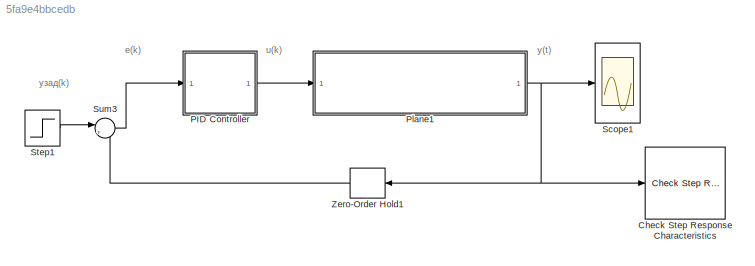
MODEL slx_5fa9e4bbcedb
KIND model
CONFIG AbsTol = auto
CONFIG EnableMultiTasking = off
CONFIG FixedStep = 1e-6
CONFIG MaxStep = 0.024
CONFIG MinStep = auto
CONFIG RelTol = 1e-3
CONFIG SampleTimeConstraint = Unconstrained
CONFIG SolverName = FixedStepAuto
CONFIG StartTime = 0.0
CONFIG StopTime = 0.1
BLOCK [Reference] Check Step Response Characteristics  REF=checkpacklib/Check Step Response 
Characteristics
  InstantiateOnLoad = on
  Ports = [1]
  SourceBlock = checkpacklib/Check Step Response \nCharacteristics
  SourceProductBaseCode = CT,ID,MT,SO
  SourceType = Checks_StepResponse
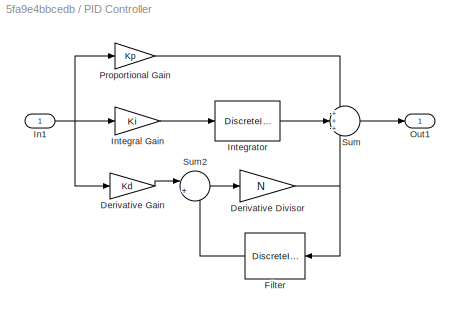
BLOCK [SubSystem] PID Controller
  Ports = [1, 1]
  RequestExecContextInheritance = off
  ShowPortLabels = FromPortBlockName
  TreatAsAtomicUnit = on
BLOCK [Gain] PID Controller/Derivative Divisor
  Gain = N
  OutDataTypeStr = Inherit: Same as input
  ParamDataTypeStr = Inherit: Same as input
  SaturateOnIntegerOverflow = on
BLOCK [Gain] PID Controller/Derivative Gain
  Gain = Kd
  OutDataTypeStr = Inherit: Same as input
  ParamDataTypeStr = Inherit: Same as input
  SaturateOnIntegerOverflow = on
BLOCK [DiscreteIntegrator] PID Controller/Filter
  ICPrevOutput = DiscIntNeverNeededParam
  ICPrevScaledInput = DiscIntNeverNeededParam
  Ports = [1, 1]
  SampleTime = Ts
BLOCK [Inport] PID Controller/In1
BLOCK [Gain] PID Controller/Integral Gain
  Gain = Ki
  OutDataTypeStr = Inherit: Same as input
  ParamDataTypeStr = Inherit: Same as input
  SaturateOnIntegerOverflow = on
BLOCK [DiscreteIntegrator] PID Controller/Integrator
  ICPrevOutput = DiscIntNeverNeededParam
  ICPrevScaledInput = DiscIntNeverNeededParam
  Ports = [1, 1]
  SampleTime = Ts
BLOCK [Outport] PID Controller/Out1
BLOCK [Gain] PID Controller/Proportional Gain
  Gain = Kp
  OutDataTypeStr = Inherit: Same as input
  ParamDataTypeStr = Inherit: Same as input
  SaturateOnIntegerOverflow = on
BLOCK [Sum] PID Controller/Sum
  InputSameDT = on
  Inputs = +++
  OutDataTypeStr = Inherit: Same as first input
  Ports = [3, 1]
  SaturateOnIntegerOverflow = on
BLOCK [Sum] PID Controller/Sum2
  InputSameDT = on
  Inputs = |+-
  OutDataTypeStr = Inherit: Same as first input
  Ports = [2, 1]
  SaturateOnIntegerOverflow = on
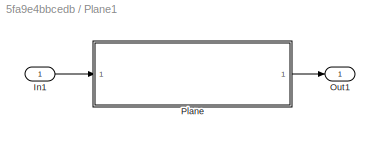
BLOCK [SubSystem] Plane1
  Ports = [1, 1]
  RequestExecContextInheritance = off
  ShowPortLabels = SignalName
  TreatAsAtomicUnit = on
BLOCK [Inport] Plane1/In1
BLOCK [Outport] Plane1/Out1
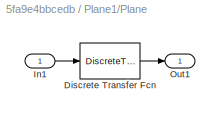
BLOCK [SubSystem] Plane1/Plane
  Ports = [1, 1]
  RequestExecContextInheritance = off
BLOCK [DiscreteTransferFcn] Plane1/Plane/Discrete Transfer Fcn
  Denominator = dend
  InputPortMap = u0
  Numerator = numd
  Ports = [1, 1]
  SampleTime = SampleTime
BLOCK [Inport] Plane1/Plane/In1
BLOCK [Outport] Plane1/Plane/Out1
BLOCK [Scope] Scope1
  Floating = off
  NumInputPorts = 1
  Ports = [1]
  ScopeSpecificationString = Simulink.scopes.TimeScopeBlockCfg('CurrentConfiguration', extmgr.ConfigurationSet(extmgr.Configuration('Core','General UI',true,'FigureColor',[1 1 1],'ShowStatusbar',false,'DisplayFullSourceName',true),extmgr.Configuration('Core','Source UI',true),extmgr.Configuration('Sources','WiredSimulink',true,'DataLoggingVariableName','ScopeData1'),extmgr.Configuration('Visuals','Time Domain',true,'TimeAxisL...<+1763ch>
BLOCK [Step] Step1
  SampleTime = Ts
  Time = 0
BLOCK [Sum] Sum3
  Inputs = |+-
  Ports = [2, 1]
BLOCK [ZeroOrderHold] Zero-Order Hold1
  SampleTime = Ts
ANNOTATION (root): u(k)
ANNOTATION (root): e(k)
ANNOTATION (root): y зад (k)
ANNOTATION (root): y(t)
NET PID Controller/Derivative Divisor:1 -> PID Controller/Filter:1, PID Controller/Sum:3
LINE PID Controller/Derivative Gain:1 -> PID Controller/Sum2:1
LINE PID Controller/Filter:1 -> PID Controller/Sum2:2
NET PID Controller/In1:1 -> PID Controller/Derivative Gain:1, PID Controller/Integral Gain:1, PID Controller/Proportional Gain:1
LINE PID Controller/Integral Gain:1 -> PID Controller/Integrator:1
LINE PID Controller/Integrator:1 -> PID Controller/Sum:2
LINE PID Controller/Proportional Gain:1 -> PID Controller/Sum:1
LINE PID Controller/Sum2:1 -> PID Controller/Derivative Divisor:1
LINE PID Controller/Sum:1 -> PID Controller/Out1:1
LINE PID Controller:1 -> Plane1:1
LINE Plane1/In1:1 -> Plane1/Plane:1
LINE Plane1/Plane:1 -> Plane1/Out1:1
NET Plane1:1 -> Check Step Response Characteristics:1, Scope1:1, Zero-Order Hold1:1
LINE Step1:1 -> Sum3:1
LINE Sum3:1 -> PID Controller:1
LINE Zero-Order Hold1:1 -> Sum3:2
note: NET lines group one-source signal fan-out (src -> all destinations, sorted); 1:1 wires keep LINE
